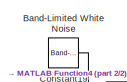
[diagram: root canvas - part 1/2, top center region]
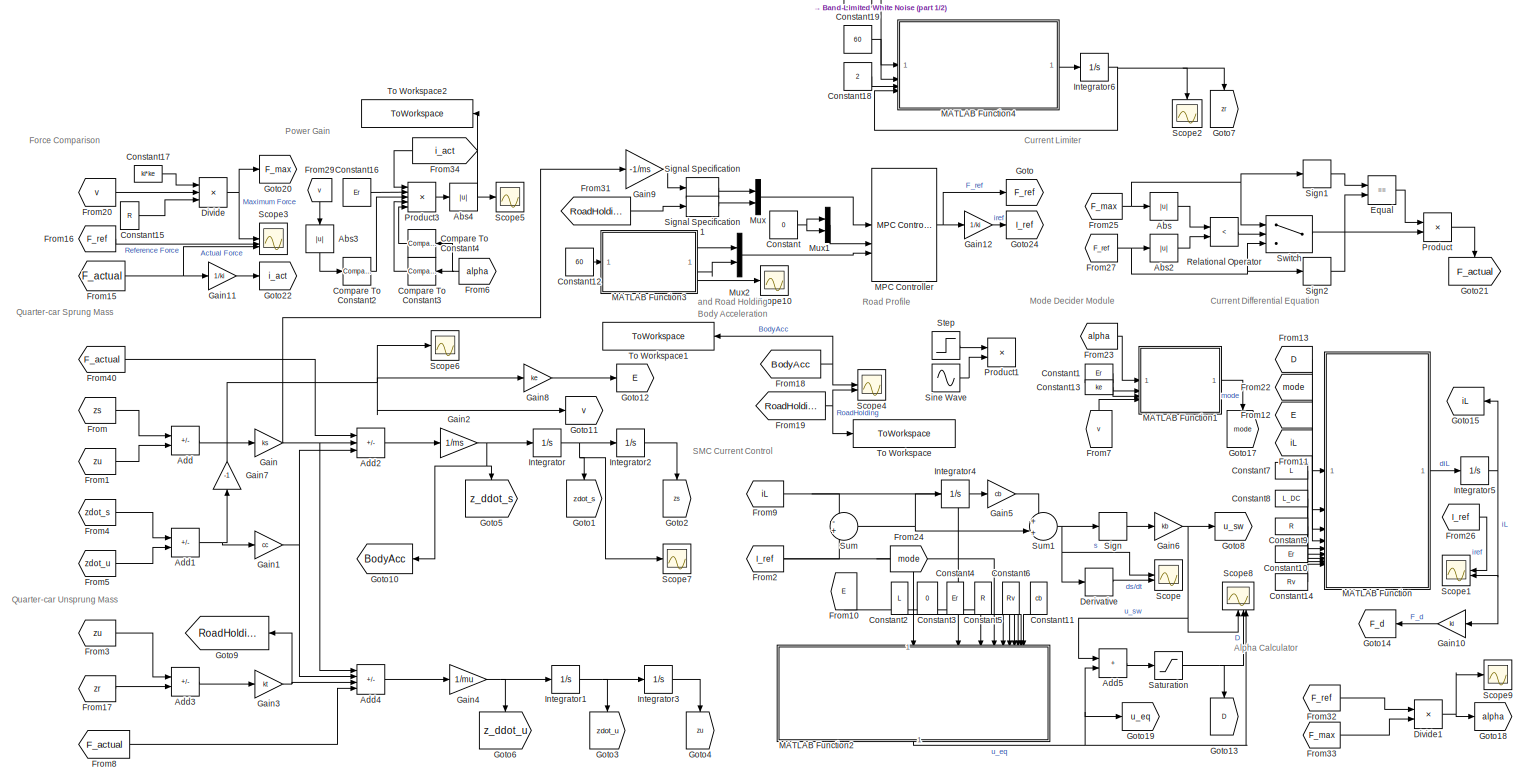
[diagram: root canvas - part 2/2, most of the canvas]
MODEL slx_d35f3d474cee
KIND model
CONFIG AbsTol = auto
CONFIG EnableMultiTasking = off
CONFIG FixedStep = 1e-6
CONFIG MaxStep = 1e-3
CONFIG MinStep = 1e-8
CONFIG RelTol = 1e-4
CONFIG SampleTimeConstraint = Unconstrained
CONFIG SolverName = FixedStepAuto
CONFIG StartTime = 0.0
CONFIG StopTime = 1.5
BLOCK [Abs] Abs
  SaturateOnIntegerOverflow = off
BLOCK [Abs] Abs2
  SaturateOnIntegerOverflow = off
BLOCK [Abs] Abs3
  NameLocation = left
  SaturateOnIntegerOverflow = off
BLOCK [Abs] Abs4
  SaturateOnIntegerOverflow = off
BLOCK [Sum] Add
  IconShape = rectangular
  Inputs = +-
BLOCK [Sum] Add1
  IconShape = rectangular
  Inputs = +-
BLOCK [Sum] Add2
  IconShape = rectangular
  Inputs = +--
BLOCK [Sum] Add3
  IconShape = rectangular
  Inputs = +-
BLOCK [Sum] Add4
  IconShape = rectangular
  Inputs = ++--
BLOCK [Sum] Add5
  IconShape = rectangular
BLOCK [Reference] Band-Limited White Noise  REF=simulink/Sources/Band-Limited
White Noise
  SourceBlock = simulink/Sources/Band-Limited\nWhite Noise
  SourceType = Band-Limited White Noise.
BLOCK [Reference] Compare To Constant2  REF=simulink/Logic and Bit
Operations/Compare
To Constant
  SourceBlock = simulink/Logic and Bit\nOperations/Compare\nTo Constant
  SourceType = Compare To Constant
BLOCK [Reference] Compare To Constant3  REF=simulink/Logic and Bit
Operations/Compare
To Constant
  NameLocation = top
  SourceBlock = simulink/Logic and Bit\nOperations/Compare\nTo Constant
  SourceType = Compare To Constant
BLOCK [Reference] Compare To Constant4  REF=simulink/Logic and Bit
Operations/Compare
To Constant
  NameLocation = top
  SourceBlock = simulink/Logic and Bit\nOperations/Compare\nTo Constant
  SourceType = Compare To Constant
BLOCK [Constant] Constant
  Value = 0
BLOCK [Constant] Constant1
  Value = Er
BLOCK [Constant] Constant10
  Value = Er
BLOCK [Constant] Constant11
  NameLocation = left
  Value = cb
BLOCK [Constant] Constant12
  Value = 60
BLOCK [Constant] Constant13
  Value = ke
BLOCK [Constant] Constant14
  Value = Rv
BLOCK [Constant] Constant15
  Value = R
BLOCK [Constant] Constant16
  Value = Er
BLOCK [Constant] Constant17
  Value = ki*ke
BLOCK [Constant] Constant18
  Value = 2
BLOCK [Constant] Constant19
  Value = 60
BLOCK [Constant] Constant2
  NameLocation = left
  Value = L
BLOCK [Constant] Constant3
  NameLocation = left
  Value = 0
BLOCK [Constant] Constant4
  NameLocation = left
  Value = Er
BLOCK [Constant] Constant5
  NameLocation = left
  Value = R
BLOCK [Constant] Constant6
  NameLocation = left
  Value = Rv
BLOCK [Constant] Constant7
  Value = L
BLOCK [Constant] Constant8
  Value = L_DC
BLOCK [Constant] Constant9
  Value = R
BLOCK [Derivative] Derivative
BLOCK [Product] Divide
  Inputs = **/
BLOCK [Product] Divide1
  Inputs = */
BLOCK [RelationalOperator] Equal
  InputSameDT = off
  Operator = ==
  OutDataTypeStr = boolean
  RndMeth = Simplest
BLOCK [From] From
  GotoTag = zs
BLOCK [From] From1
  GotoTag = zu
BLOCK [From] From10
  GotoTag = E
  NameLocation = left
BLOCK [From] From11
  GotoTag = iL
BLOCK [From] From12
  GotoTag = E
BLOCK [From] From13
  GotoTag = D
BLOCK [From] From15
  GotoTag = F_actual
BLOCK [From] From16
  GotoTag = F_ref
BLOCK [From] From17
  GotoTag = zr
BLOCK [From] From18
  GotoTag = BodyAcc
BLOCK [From] From19
  GotoTag = RoadHolding
BLOCK [From] From2
  GotoTag = I_ref
BLOCK [From] From20
  GotoTag = v
BLOCK [From] From22
  GotoTag = mode
BLOCK [From] From23
  GotoTag = alpha
BLOCK [From] From24
  GotoTag = mode
  NameLocation = top
BLOCK [From] From25
  GotoTag = F_max
BLOCK [From] From26
  GotoTag = I_ref
BLOCK [From] From27
  GotoTag = F_ref
  NameLocation = top
BLOCK [From] From29
  GotoTag = v
  NameLocation = left
BLOCK [From] From3
  GotoTag = zu
BLOCK [From] From31
  GotoTag = RoadHolding
BLOCK [From] From32
  GotoTag = F_ref
BLOCK [From] From33
  GotoTag = F_max
BLOCK [From] From34
  GotoTag = i_act
  NameLocation = top
BLOCK [From] From4
  GotoTag = zdot_s
BLOCK [From] From40
  GotoTag = F_actual
BLOCK [From] From5
  GotoTag = zdot_u
BLOCK [From] From6
  GotoTag = alpha
  NameLocation = top
BLOCK [From] From7
  GotoTag = v
  NameLocation = right
BLOCK [From] From8
  GotoTag = F_actual
BLOCK [From] From9
  GotoTag = iL
BLOCK [Gain] Gain
  Gain = ks
BLOCK [Gain] Gain1
  Gain = cc
BLOCK [Gain] Gain10
  Gain = ki
  NameLocation = top
BLOCK [Gain] Gain11
  Gain = 1/ki
BLOCK [Gain] Gain12
  Gain = 1/ki
BLOCK [Gain] Gain2
  Gain = 1/ms
BLOCK [Gain] Gain3
  Gain = kt
BLOCK [Gain] Gain4
  Gain = 1/mu
BLOCK [Gain] Gain5
  Gain = cb
BLOCK [Gain] Gain6
  Gain = kb
BLOCK [Gain] Gain7
  Gain = -1
  NameLocation = right
BLOCK [Gain] Gain8
  Gain = ke
BLOCK [Gain] Gain9
  Gain = -1/ms
BLOCK [Goto] Goto
  GotoTag = F_ref
BLOCK [Goto] Goto1
  GotoTag = zdot_s
  NameLocation = left
BLOCK [Goto] Goto10
  GotoTag = BodyAcc
  NameLocation = top
BLOCK [Goto] Goto11
  GotoTag = v
BLOCK [Goto] Goto12
  GotoTag = E
BLOCK [Goto] Goto13
  GotoTag = D
  NameLocation = left
BLOCK [Goto] Goto14
  GotoTag = F_d
  NameLocation = top
BLOCK [Goto] Goto15
  GotoTag = iL
  NameLocation = top
BLOCK [Goto] Goto17
  GotoTag = mode
  NameLocation = left
BLOCK [Goto] Goto18
  GotoTag = alpha
BLOCK [Goto] Goto19
  GotoTag = u_eq
BLOCK [Goto] Goto2
  GotoTag = zs
  NameLocation = left
BLOCK [Goto] Goto20
  GotoTag = F_max
BLOCK [Goto] Goto21
  GotoTag = F_actual
  NameLocation = left
BLOCK [Goto] Goto22
  GotoTag = i_act
BLOCK [Goto] Goto24
  GotoTag = I_ref
BLOCK [Goto] Goto3
  GotoTag = zdot_u
  NameLocation = left
BLOCK [Goto] Goto4
  GotoTag = zu
  NameLocation = left
BLOCK [Goto] Goto5
  GotoTag = z_ddot_s
  NameLocation = left
BLOCK [Goto] Goto6
  GotoTag = z_ddot_u
  NameLocation = left
BLOCK [Goto] Goto7
  GotoTag = zr
  NameLocation = left
BLOCK [Goto] Goto8
  GotoTag = u_sw
BLOCK [Goto] Goto9
  GotoTag = RoadHolding
  NameLocation = top
BLOCK [Integrator] Integrator
BLOCK [Integrator] Integrator1
BLOCK [Integrator] Integrator2
BLOCK [Integrator] Integrator3
BLOCK [Integrator] Integrator4
BLOCK [Integrator] Integrator5
BLOCK [Integrator] Integrator6
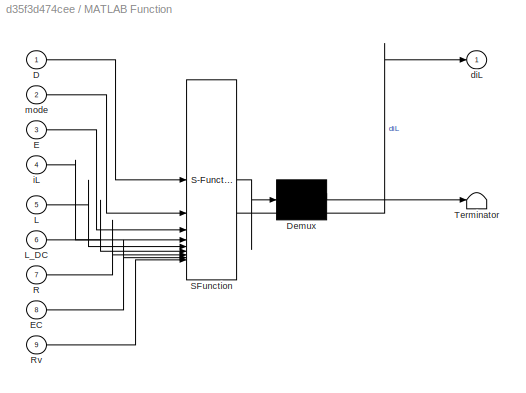
BLOCK [SubSystem] MATLAB Function
  ErrorFcn = Stateflow.Translate.translate
  PermitHierarchicalResolution = ExplicitOnly
  SFBlockType = MATLAB Function
  TreatAsAtomicUnit = on
BLOCK [Demux] MATLAB Function/ Demux 
  Outputs = 1
BLOCK [S-Function] MATLAB Function/ SFunction 
  EnableBusSupport = off
  FunctionName = sf_sfun
  PortCounts = [9 2]
  SFcnIsStateOwnerBlock = off
  SFunctionDeploymentMode = off
  Tag = Stateflow S-Function 2
BLOCK [Terminator] MATLAB Function/ Terminator 
BLOCK [Inport] MATLAB Function/D
BLOCK [Inport] MATLAB Function/E
  Port = 3
BLOCK [Inport] MATLAB Function/EC
  Port = 8
BLOCK [Inport] MATLAB Function/L
  Port = 5
BLOCK [Inport] MATLAB Function/L_DC
  Port = 6
BLOCK [Inport] MATLAB Function/R
  Port = 7
BLOCK [Inport] MATLAB Function/Rv
  Port = 9
BLOCK [Outport] MATLAB Function/diL
BLOCK [Inport] MATLAB Function/iL
  Port = 4
BLOCK [Inport] MATLAB Function/mode
  Port = 2
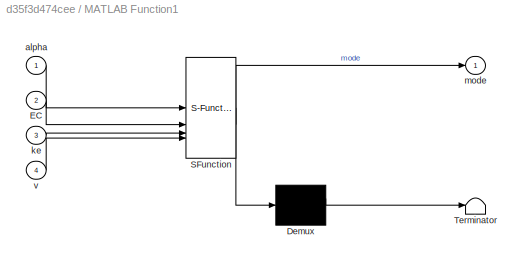
BLOCK [SubSystem] MATLAB Function1
  ErrorFcn = Stateflow.Translate.translate
  PermitHierarchicalResolution = ExplicitOnly
  SFBlockType = MATLAB Function
  TreatAsAtomicUnit = on
BLOCK [Demux] MATLAB Function1/ Demux 
  Outputs = 1
BLOCK [S-Function] MATLAB Function1/ SFunction 
  EnableBusSupport = off
  FunctionName = sf_sfun
  PortCounts = [4 2]
  SFcnIsStateOwnerBlock = off
  SFunctionDeploymentMode = off
  Tag = Stateflow S-Function 1
BLOCK [Terminator] MATLAB Function1/ Terminator 
BLOCK [Inport] MATLAB Function1/EC
  Port = 2
BLOCK [Inport] MATLAB Function1/alpha
BLOCK [Inport] MATLAB Function1/ke
  Port = 3
BLOCK [Outport] MATLAB Function1/mode
BLOCK [Inport] MATLAB Function1/v
  Port = 4
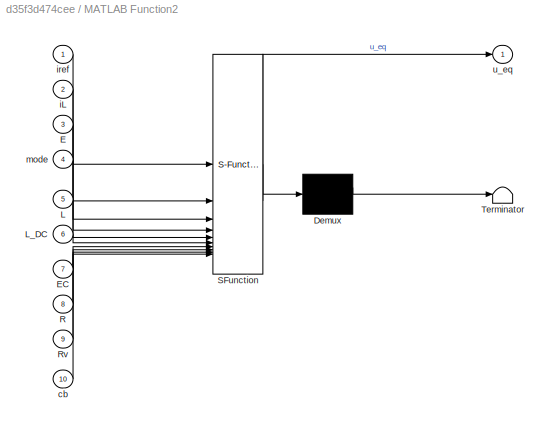
BLOCK [SubSystem] MATLAB Function2
  ErrorFcn = Stateflow.Translate.translate
  NameLocation = left
  PermitHierarchicalResolution = ExplicitOnly
  SFBlockType = MATLAB Function
  TreatAsAtomicUnit = on
BLOCK [Demux] MATLAB Function2/ Demux 
  Outputs = 1
BLOCK [S-Function] MATLAB Function2/ SFunction 
  EnableBusSupport = off
  FunctionName = sf_sfun
  PortCounts = [10 2]
  SFcnIsStateOwnerBlock = off
  SFunctionDeploymentMode = off
  Tag = Stateflow S-Function 3
BLOCK [Terminator] MATLAB Function2/ Terminator 
BLOCK [Inport] MATLAB Function2/E
  Port = 3
BLOCK [Inport] MATLAB Function2/EC
  Port = 7
BLOCK [Inport] MATLAB Function2/L
  Port = 5
BLOCK [Inport] MATLAB Function2/L_DC
  Port = 6
BLOCK [Inport] MATLAB Function2/R
  Port = 8
BLOCK [Inport] MATLAB Function2/Rv
  Port = 9
BLOCK [Inport] MATLAB Function2/cb
  Port = 10
BLOCK [Inport] MATLAB Function2/iL
  Port = 2
BLOCK [Inport] MATLAB Function2/iref
BLOCK [Inport] MATLAB Function2/mode
  Port = 4
BLOCK [Outport] MATLAB Function2/u_eq
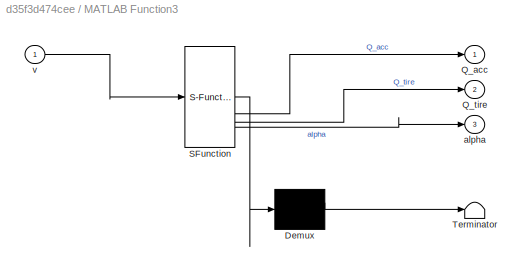
BLOCK [SubSystem] MATLAB Function3
  ErrorFcn = Stateflow.Translate.translate
  PermitHierarchicalResolution = ExplicitOnly
  SFBlockType = MATLAB Function
  TreatAsAtomicUnit = on
BLOCK [Demux] MATLAB Function3/ Demux 
  Outputs = 1
BLOCK [S-Function] MATLAB Function3/ SFunction 
  EnableBusSupport = off
  FunctionName = sf_sfun
  PortCounts = [1 4]
  SFcnIsStateOwnerBlock = off
  SFunctionDeploymentMode = off
  Tag = Stateflow S-Function 4
BLOCK [Terminator] MATLAB Function3/ Terminator 
BLOCK [Outport] MATLAB Function3/Q_acc
BLOCK [Outport] MATLAB Function3/Q_tire
  Port = 2
BLOCK [Outport] MATLAB Function3/alpha
  Port = 3
BLOCK [Inport] MATLAB Function3/v
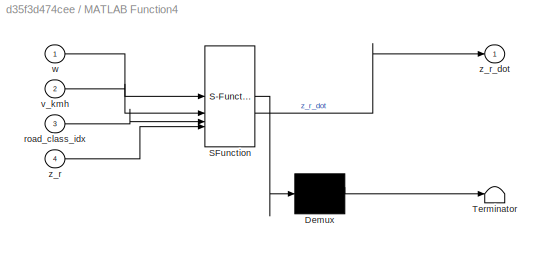
BLOCK [SubSystem] MATLAB Function4
  ErrorFcn = Stateflow.Translate.translate
  PermitHierarchicalResolution = ExplicitOnly
  SFBlockType = MATLAB Function
  TreatAsAtomicUnit = on
BLOCK [Demux] MATLAB Function4/ Demux 
  Outputs = 1
BLOCK [S-Function] MATLAB Function4/ SFunction 
  EnableBusSupport = off
  FunctionName = sf_sfun
  PortCounts = [4 2]
  SFcnIsStateOwnerBlock = off
  SFunctionDeploymentMode = off
  Tag = Stateflow S-Function 5
BLOCK [Terminator] MATLAB Function4/ Terminator 
BLOCK [Inport] MATLAB Function4/road_class_idx
  Port = 3
BLOCK [Inport] MATLAB Function4/v_kmh
  Port = 2
BLOCK [Inport] MATLAB Function4/w
BLOCK [Inport] MATLAB Function4/z_r
  Port = 4
BLOCK [Outport] MATLAB Function4/z_r_dot
BLOCK [Reference] MPC Controller  REF=mpclib/MPC Controller  (lib defined in mdl_ae329e0e0455)
  SCDEnableBlockLinearizationSpecification = on
  SourceBlock = mpclib/MPC Controller
  SourceType = MPC
BLOCK [Mux] Mux
  DisplayOption = bar
  Inputs = 2
BLOCK [Mux] Mux1
  DisplayOption = bar
  Inputs = 2
BLOCK [Mux] Mux2
  DisplayOption = bar
  Inputs = 2
BLOCK [Product] Product
BLOCK [Product] Product1
BLOCK [Product] Product3
  Inputs = 5
BLOCK [RelationalOperator] Relational Operator
  InputSameDT = off
  Operator = <
  OutDataTypeStr = boolean
  RndMeth = Simplest
BLOCK [Saturate] Saturation
  LowerLimit = 0
  UpperLimit = 1
BLOCK [Scope] Scope
  ActiveDisplayYMaximum = 27.088399971002072
  ActiveDisplayYMinimum = -29.356292824896194
  DataLoggingVariableName = ScopeData2
  Floating = off
  GraphicalSettings = {"Style":{"BackgroundColor":[0.12941176470588237,0.12941176470588237,0.12941176470588237],"AxesColor":[0.07058823529411765,0.07058823529411765,0.07058823529411765],"LabelsColor":[0.8509803921568627,0.8509803921568627,0.8509803921568627],"PreserveColors":false,"Visible":[true,true],"LineStyle":["-","-"],"LineWidth":[1.5,1.5],"BarWidth":[0.9,0.9],"LineColor":["auto","auto"],"LineFaceAlpha":[1,1],"Li...<+2404ch>
  LayoutDimensionsString = [1, 2]
  MultipleDisplayCache = [{"MaxYLimMag":29.356292824896194,"MaxYLimReal":27.088399971002072,"MinYLimMag":0,"MinYLimReal":-29.356292824896194,"PlotAsMagnitudePhase":false,"ShowGrid":true,"ShowLegend":true,"Title":"%<SignalLabel>","YLabel":""},{"MaxYLimMag":3.1278223433579169E+7,"MaxYLimReal":2.9638150807690009E+7,"MinYLimMag":0,"MinYLimReal":-3.1278223433579169E+7,"PlotAsMagnitudePhase":false,"ShowGrid":true,"ShowLegend":t...<+42ch>
  NumInputPorts = 2
  ScopeFrameLocation = window
  ShowLegend = on
  Visible = on
  WasSavedAsWebScope = on
  WindowPosition = [241.000000,208.000000,958.000000,484.000000,]
BLOCK [Scope] Scope1
  ActiveDisplayYMaximum = 1
  ActiveDisplayYMinimum = -1
  Floating = off
  GraphicalSettings = {"Style":{"BackgroundColor":[0.12941176470588237,0.12941176470588237,0.12941176470588237],"AxesColor":[0.07058823529411765,0.07058823529411765,0.07058823529411765],"LabelsColor":[0.8509803921568627,0.8509803921568627,0.8509803921568627],"PreserveColors":false,"Visible":[true,true],"LineStyle":["-","-"],"LineWidth":[1.5,1.5],"BarWidth":[0.9,0.9],"LineColor":["auto","auto"],"LineFaceAlpha":[1,1],"Li...<+2091ch>
  MultipleDisplayCache = [{"MaxYLimMag":1,"MaxYLimReal":1,"MinYLimMag":0,"MinYLimReal":-1,"PlotAsMagnitudePhase":false,"ShowGrid":true,"ShowLegend":true,"Title":"%<SignalLabel>","YLabel":""}]
  NameLocation = top
  NumInputPorts = 2
  ScopeFrameLocation = window
  ShowLegend = on
  WasSavedAsWebScope = on
  WindowPosition = [9.000000,9.000000,1424.000000,831.000000,]
BLOCK [Scope] Scope10
  ActiveDisplayYMaximum = 0.057425873177566637
  ActiveDisplayYMinimum = 0.037425873177566633
  DataLoggingVariableName = ScopeData10
  Floating = off
  GraphicalSettings = {"Style":{"BackgroundColor":[0.12941176470588237,0.12941176470588237,0.12941176470588237],"AxesColor":[0.07058823529411765,0.07058823529411765,0.07058823529411765],"LabelsColor":[0.8509803921568627,0.8509803921568627,0.8509803921568627],"PreserveColors":false,"Visible":[true],"LineStyle":["-"],"LineWidth":[1.5],"BarWidth":[0.9],"LineColor":["auto"],"LineFaceAlpha":[1],"LineEdgeAlpha":[1],"Marker":...<+2068ch>
  MultipleDisplayCache = [{"MaxYLimMag":0.057425873177566637,"MaxYLimReal":0.057425873177566637,"MinYLimMag":0.037425873177566633,"MinYLimReal":0.037425873177566633,"PlotAsMagnitudePhase":false,"ShowGrid":true,"ShowLegend":false,"Title":"%<SignalLabel>","YLabel":""}]
  NumInputPorts = 1
  ScopeFrameLocation = window
  Visible = on
  WasSavedAsWebScope = on
  WindowPosition = [440.000000,240.000000,560.000000,420.000000,]
BLOCK [Scope] Scope2
  ActiveDisplayYMaximum = 0.076093014405660034
  ActiveDisplayYMinimum = -0.038627991186600694
  DataLoggingVariableName = ScopeData1
  Floating = off
  GraphicalSettings = {"Style":{"BackgroundColor":[0.12941176470588237,0.12941176470588237,0.12941176470588237],"AxesColor":[0.07058823529411765,0.07058823529411765,0.07058823529411765],"LabelsColor":[0.8509803921568627,0.8509803921568627,0.8509803921568627],"PreserveColors":false,"Visible":[true],"LineStyle":["-"],"LineWidth":[1.5],"BarWidth":[0.9],"LineColor":["auto"],"LineFaceAlpha":[1],"LineEdgeAlpha":[1],"Marker":...<+2014ch>
  MultipleDisplayCache = [{"MaxYLimMag":0.076093014405660034,"MaxYLimReal":0.076093014405660034,"MinYLimMag":0,"MinYLimReal":-0.038627991186600694,"PlotAsMagnitudePhase":false,"ShowGrid":true,"ShowLegend":false,"Title":"%<SignalLabel>","YLabel":""}]
  NameLocation = left
  NumInputPorts = 1
  ScopeFrameLocation = window
  Visible = on
  WasSavedAsWebScope = on
  WindowPosition = [440.000000,240.000000,560.000000,420.000000,]
BLOCK [Scope] Scope3
  ActiveDisplayYMaximum = 2225.4972154687066
  ActiveDisplayYMinimum = -2220.0939214078944
  DataLoggingVariableName = ScopeData4
  Floating = off
  GraphicalSettings = {"Style":{"BackgroundColor":[0.12941176470588237,0.12941176470588237,0.12941176470588237],"AxesColor":[0.07058823529411765,0.07058823529411765,0.07058823529411765],"LabelsColor":[0.8509803921568627,0.8509803921568627,0.8509803921568627],"PreserveColors":false,"Visible":[true,true,true],"LineStyle":["-","-","-"],"LineWidth":[1.5,1.5,1.5],"BarWidth":[0.9,0.9,0.9],"LineColor":["auto","auto","auto"],"...<+2264ch>
  MultipleDisplayCache = [{"MaxYLimMag":2225.4972154687066,"MaxYLimReal":2225.4972154687066,"MinYLimMag":0,"MinYLimReal":-2220.0939214078944,"PlotAsMagnitudePhase":false,"ShowGrid":true,"ShowLegend":true,"Title":"%<SignalLabel>","YLabel":""}]
  NumInputPorts = 3
  ScopeFrameLocation = window
  ShowLegend = on
  Visible = on
  WasSavedAsWebScope = on
  WindowPosition = [9.000000,9.000000,1424.000000,831.000000,]
BLOCK [Scope] Scope4
  ActiveDisplayString = 2
  ActiveDisplayYMaximum = 1323.571862646857
  ActiveDisplayYMinimum = -1440.5117323109057
  DataLoggingVariableName = ScopeData5
  Floating = off
  GraphicalSettings = {"Style":{"BackgroundColor":[1,1,1],"AxesColor":[1,1,1],"LabelsColor":[0,0,0],"PreserveColors":false,"Visible":[true,true],"LineStyle":["-","-"],"LineWidth":[3,3],"BarWidth":[0.9,0.9],"LineColor":[[0.06666666666666667,0.44313725490196076,0.7450980392156863],[1,0,0]],"LineFaceAlpha":[1,1],"LineEdgeAlpha":[1,1],"Marker":["none","none"],"FontSize":8.5,"LineTrueColor":[[0.06666666666666667,0.443137254...<+2307ch>
  LayoutDimensionsString = [2, 1]
  MultipleDisplayCache = [{"MaxYLimMag":35.348913273160036,"MaxYLimReal":35.348913273160036,"MinYLimMag":0,"MinYLimReal":-34.01587980290951,"PlotAsMagnitudePhase":false,"ShowGrid":true,"ShowLegend":true,"Title":"%<SignalLabel>","YLabel":""},{"MaxYLimMag":1440.5117323109057,"MaxYLimReal":1323.571862646857,"MinYLimMag":0,"MinYLimReal":-1440.5117323109057,"PlotAsMagnitudePhase":false,"ShowGrid":true,"ShowLegend":true,"Title"...<+31ch>
  NumInputPorts = 2
  ScopeFrameLocation = window
  ShowLegend = on
  Visible = on
  WasSavedAsWebScope = on
  WindowPosition = [1.000000,1.000000,1440.000000,847.000000,]
BLOCK [Scope] Scope5
  ActiveDisplayYMaximum = 143.22637971720667
  ActiveDisplayYMinimum = -15.914042190800739
  DataLoggingVariableName = ScopeData3
  Floating = off
  GraphicalSettings = {"Style":{"BackgroundColor":[0.12941176470588237,0.12941176470588237,0.12941176470588237],"AxesColor":[0.07058823529411765,0.07058823529411765,0.07058823529411765],"LabelsColor":[0.8509803921568627,0.8509803921568627,0.8509803921568627],"PreserveColors":false,"Visible":[true],"LineStyle":["-"],"LineWidth":[1.5],"BarWidth":[0.9],"LineColor":["auto"],"LineFaceAlpha":[1],"LineEdgeAlpha":[1],"Marker":...<+1993ch>
  MultipleDisplayCache = [{"MaxYLimMag":143.22637971720667,"MaxYLimReal":143.22637971720667,"MinYLimMag":0,"MinYLimReal":-15.914042190800739,"PlotAsMagnitudePhase":false,"ShowGrid":true,"ShowLegend":false,"Title":"%<SignalLabel>","YLabel":""}]
  NumInputPorts = 1
  ScopeFrameLocation = window
  Visible = on
  WasSavedAsWebScope = on
  WindowPosition = [9.000000,9.000000,1424.000000,831.000000,]
BLOCK [Scope] Scope6
  ActiveDisplayYMaximum = 1
  ActiveDisplayYMinimum = -1
  DataLoggingVariableName = ScopeData6
  Floating = off
  GraphicalSettings = {"Style":{"BackgroundColor":[0.12941176470588237,0.12941176470588237,0.12941176470588237],"AxesColor":[0.07058823529411765,0.07058823529411765,0.07058823529411765],"LabelsColor":[0.8509803921568627,0.8509803921568627,0.8509803921568627],"PreserveColors":false,"Visible":[true],"LineStyle":["-"],"LineWidth":[1.5],"BarWidth":[0.9],"LineColor":["auto"],"LineFaceAlpha":[1],"LineEdgeAlpha":[1],"Marker":...<+1990ch>
  MultipleDisplayCache = [{"MaxYLimMag":1,"MaxYLimReal":1,"MinYLimMag":0,"MinYLimReal":-1,"PlotAsMagnitudePhase":false,"ShowGrid":true,"ShowLegend":false,"Title":"%<SignalLabel>","YLabel":""}]
  NumInputPorts = 1
  ScopeFrameLocation = window
  WasSavedAsWebScope = on
  WindowPosition = [483.000000,50.000000,958.000000,484.000000,]
BLOCK [Scope] Scope7
  ActiveDisplayYMaximum = 0.54221285575835743
  ActiveDisplayYMinimum = -0.36527469356697528
  DataLoggingVariableName = ScopeData7
  Floating = off
  GraphicalSettings = {"Style":{"BackgroundColor":[0.12941176470588237,0.12941176470588237,0.12941176470588237],"AxesColor":[0.07058823529411765,0.07058823529411765,0.07058823529411765],"LabelsColor":[0.8509803921568627,0.8509803921568627,0.8509803921568627],"PreserveColors":false,"Visible":[true],"LineStyle":["-"],"LineWidth":[1.5],"BarWidth":[0.9],"LineColor":["auto"],"LineFaceAlpha":[1],"LineEdgeAlpha":[1],"Marker":...<+2004ch>
  MultipleDisplayCache = [{"MaxYLimMag":0.54221285575835743,"MaxYLimReal":0.54221285575835743,"MinYLimMag":0,"MinYLimReal":-0.36527469356697528,"PlotAsMagnitudePhase":false,"ShowGrid":true,"ShowLegend":false,"Title":"%<SignalLabel>","YLabel":""}]
  NumInputPorts = 1
  ScopeFrameLocation = window
  Visible = on
  WasSavedAsWebScope = on
  WindowPosition = [551.000000,152.000000,560.000000,420.000000,]
BLOCK [Scope] Scope8
  ActiveDisplayYMaximum = 2.8491770678518753
  ActiveDisplayYMinimum = -1.7651094697775311
  DataLoggingVariableName = ScopeData8
  Floating = off
  GraphicalSettings = {"Style":{"BackgroundColor":[0.12941176470588237,0.12941176470588237,0.12941176470588237],"AxesColor":[0.07058823529411765,0.07058823529411765,0.07058823529411765],"LabelsColor":[0.8509803921568627,0.8509803921568627,0.8509803921568627],"PreserveColors":false,"Visible":[true,true,true],"LineStyle":["-","-","-"],"LineWidth":[1.5,1.5,1.5],"BarWidth":[0.9,0.9,0.9],"LineColor":["auto","auto","auto"],"...<+2202ch>
  MultipleDisplayCache = [{"MaxYLimMag":2.8491770678518753,"MaxYLimReal":2.8491770678518753,"MinYLimMag":0,"MinYLimReal":-1.7651094697775311,"PlotAsMagnitudePhase":false,"ShowGrid":true,"ShowLegend":true,"Title":"%<SignalLabel>","YLabel":""}]
  NameLocation = right
  NumInputPorts = 3
  ScopeFrameLocation = window
  ShowLegend = on
  Visible = on
  WasSavedAsWebScope = on
  WindowPosition = [2.000000,50.000000,958.000000,484.000000,]
BLOCK [Scope] Scope9
  ActiveDisplayYMaximum = 1.4819821077396598E+7
  ActiveDisplayYMinimum = -9.7479760166625269E+6
  DataLoggingVariableName = ScopeData9
  Floating = off
  GraphicalSettings = {"Style":{"BackgroundColor":[0.12941176470588237,0.12941176470588237,0.12941176470588237],"AxesColor":[0.07058823529411765,0.07058823529411765,0.07058823529411765],"LabelsColor":[0.8509803921568627,0.8509803921568627,0.8509803921568627],"PreserveColors":false,"Visible":[true],"LineStyle":["-"],"LineWidth":[1.5],"BarWidth":[0.9],"LineColor":["auto"],"LineFaceAlpha":[1],"LineEdgeAlpha":[1],"Marker":...<+1997ch>
  MultipleDisplayCache = [{"MaxYLimMag":1.4819821077396598E+7,"MaxYLimReal":1.4819821077396598E+7,"MinYLimMag":0,"MinYLimReal":-9.7479760166625269E+6,"PlotAsMagnitudePhase":false,"ShowGrid":true,"ShowLegend":false,"Title":"%<SignalLabel>","YLabel":""}]
  NumInputPorts = 1
  ScopeFrameLocation = window
  Visible = on
  WasSavedAsWebScope = on
  WindowPosition = [440.000000,240.000000,560.000000,420.000000,]
BLOCK [Signum] Sign
BLOCK [Signum] Sign1
BLOCK [Signum] Sign2
BLOCK [SignalSpecification] Signal Specification
  Dimensions = 1
BLOCK [SignalSpecification] Signal Specification1
  Dimensions = 1
BLOCK [Sin] Sine Wave
  Amplitude = 0.03
  Frequency = 2*pi*10.9
  SampleTime = 0
BLOCK [Step] Step
  After = 0
  Before = 1
  SampleTime = 0
BLOCK [Sum] Sum
  Inputs = -+
BLOCK [Sum] Sum1
  Inputs = +|+||
BLOCK [Switch] Switch
  Criteria = u2 > Threshold
  InputSameDT = off
  SaturateOnIntegerOverflow = off
  Threshold = 0.5
BLOCK [ToWorkspace] To Workspace
  FixptAsFi = on
  MaxDataPoints = inf
  SampleTime = -1
  SaveFormat = Structure With Time
  VariableName = RoadHolding
BLOCK [ToWorkspace] To Workspace1
  FixptAsFi = on
  MaxDataPoints = inf
  NameLocation = top
  SampleTime = -1
  SaveFormat = Structure With Time
  VariableName = BodyAcceleration
BLOCK [ToWorkspace] To Workspace2
  FixptAsFi = on
  MaxDataPoints = inf
  NameLocation = top
  SampleTime = -1
  SaveFormat = Structure With Time
  VariableName = Power
ANNOTATION (root): Alpha Calculator
ANNOTATION (root): Body Acceleration and Road Holding
ANNOTATION (root): Current Differential Equation
ANNOTATION (root): Current Limiter
ANNOTATION (root): Force Comparison
ANNOTATION (root): Mode Decider Module
ANNOTATION (root): Power Gain
ANNOTATION (root): Quarter-car Sprung Mass
ANNOTATION (root): Quarter-car Unsprung Mass
ANNOTATION (root): Road Profile
ANNOTATION (root): SMC Current Control
LINE Abs2:1 -> Relational Operator:2
LINE Abs3:1 -> Compare To Constant2:1
NET Abs4:1 -> Scope5:1, To Workspace2:1
LINE Abs:1 -> Relational Operator:1
NET Add1:1 -> Gain1:1, Gain7:1
LINE Add2:1 -> Gain2:1
LINE Add3:1 -> Gain3:1
LINE Add4:1 -> Gain4:1
LINE Add5:1 -> Saturation:1
LINE Add:1 -> Gain:1
LINE Band-Limited White Noise:1 -> MATLAB Function4:1
LINE Compare To Constant2:1 -> Product3:3
LINE Compare To Constant3:1 -> Product3:4
LINE Compare To Constant4:1 -> Product3:5
LINE Constant10:1 -> MATLAB Function:8
LINE Constant11:1 -> MATLAB Function2:10
LINE Constant12:1 -> MATLAB Function3:1
LINE Constant13:1 -> MATLAB Function1:3
LINE Constant14:1 -> MATLAB Function:9
LINE Constant15:1 -> Divide:3
LINE Constant16:1 -> Product3:2
LINE Constant17:1 -> Divide:1
LINE Constant18:1 -> MATLAB Function4:3
LINE Constant19:1 -> MATLAB Function4:2
LINE Constant1:1 -> MATLAB Function1:2
LINE Constant2:1 -> MATLAB Function2:5
LINE Constant3:1 -> MATLAB Function2:6
LINE Constant4:1 -> MATLAB Function2:7
LINE Constant5:1 -> MATLAB Function2:8
LINE Constant6:1 -> MATLAB Function2:9
LINE Constant7:1 -> MATLAB Function:5
LINE Constant8:1 -> MATLAB Function:6
LINE Constant9:1 -> MATLAB Function:7
NET Constant:1 -> Mux1:1, Mux1:2
LINE Derivative:1 -> Scope:2
NET Divide1:1 -> Goto18:1, Scope9:1
NET Divide:1 -> Goto20:1, Scope3:1
LINE Equal:1 -> Product:1
LINE From10:1 -> MATLAB Function2:3
LINE From11:1 -> MATLAB Function:4
LINE From12:1 -> MATLAB Function:3
LINE From13:1 -> MATLAB Function:1
NET From15:1 -> Gain11:1, Scope3:3
LINE From16:1 -> Scope3:2
LINE From17:1 -> Add3:2
NET From18:1 -> Scope4:1, To Workspace1:1
NET From19:1 -> Scope4:2, To Workspace:1
LINE From1:1 -> Add:2
LINE From20:1 -> Divide:2
LINE From22:1 -> MATLAB Function:2
LINE From23:1 -> MATLAB Function1:1
LINE From24:1 -> MATLAB Function2:4
NET From25:1 -> Abs:1, Sign1:1, Switch:1
LINE From26:1 -> Scope1:1
NET From27:1 -> Abs2:1, Sign2:1, Switch:3
LINE From29:1 -> Abs3:1
NET From2:1 -> MATLAB Function2:1, Sum:2
LINE From31:1 -> Signal Specification1:1
LINE From32:1 -> Divide1:1
LINE From33:1 -> Divide1:2
LINE From34:1 -> Product3:1
LINE From3:1 -> Add3:1
LINE From40:1 -> Add2:1
LINE From4:1 -> Add1:1
LINE From5:1 -> Add1:2
NET From6:1 -> Compare To Constant3:1, Compare To Constant4:1
LINE From7:1 -> MATLAB Function1:4
LINE From8:1 -> Add4:4
NET From9:1 -> MATLAB Function2:2, Sum:1
LINE From:1 -> Add:1
LINE Gain10:1 -> Goto14:1
LINE Gain11:1 -> Goto22:1
LINE Gain12:1 -> Goto24:1
NET Gain1:1 -> Add2:3, Add4:2
NET Gain2:1 -> Goto10:1, Goto5:1, Integrator:1
NET Gain3:1 -> Add4:3, Goto9:1
NET Gain4:1 -> Goto6:1, Integrator1:1
LINE Gain5:1 -> Sum1:1
NET Gain6:1 -> Add5:1, Goto8:1, Scope8:1
NET Gain7:1 -> Gain8:1, Goto11:1, Scope6:1
LINE Gain8:1 -> Goto12:1
LINE Gain9:1 -> Signal Specification:1
NET Gain:1 -> Add2:2, Add4:1, Gain9:1
NET Integrator1:1 -> Goto3:1, Integrator3:1
LINE Integrator2:1 -> Goto2:1
LINE Integrator3:1 -> Goto4:1
LINE Integrator4:1 -> Gain5:1
NET Integrator5:1 -> Gain10:1, Goto15:1, Scope1:2
NET Integrator6:1 -> Goto7:1, MATLAB Function4:4, Scope2:1
NET Integrator:1 -> Goto1:1, Integrator2:1, Scope7:1
LINE MATLAB Function1:1 -> Goto17:1
NET MATLAB Function2:1 -> Add5:2, Goto19:1, Scope8:3
LINE MATLAB Function3:1 -> Mux2:1
LINE MATLAB Function3:2 -> Mux2:2
LINE MATLAB Function3:3 -> Scope10:1
LINE MATLAB Function4:1 -> Integrator6:1
LINE MATLAB Function:1 -> Integrator5:1
NET MPC Controller:1 -> Gain12:1, Goto:1
LINE Mux1:1 -> MPC Controller:2
LINE Mux2:1 -> MPC Controller:3
LINE Mux:1 -> MPC Controller:1
LINE Product3:1 -> Abs4:1
LINE Product:1 -> Goto21:1
LINE Relational Operator:1 -> Switch:2
NET Saturation:1 -> Goto13:1, Scope8:2
LINE Sign1:1 -> Equal:1
LINE Sign2:1 -> Equal:2
LINE Sign:1 -> Gain6:1
LINE Signal Specification1:1 -> Mux:2
LINE Signal Specification:1 -> Mux:1
LINE Sine Wave:1 -> Product1:2
LINE Step:1 -> Product1:1
NET Sum1:1 -> Derivative:1, Scope:1, Sign:1
NET Sum:1 -> Integrator4:1, Sum1:2
LINE Switch:1 -> Product:2
note: NET lines group one-source signal fan-out (src -> all destinations, sorted); 1:1 wires keep LINE
CHART MATLAB Function1 states=1 transitions=1
  STATE_LABEL 'eML_blk_kernel()'
  STATE_LABEL 'SCRIPT:\nfunction mode = mode(alpha, EC, ke, v)\n\n    % guard against alpha >= 1\n    if alpha >= 1\n        % semi-active not achievable\n        % both VT1 and VT2 on, passive damper\n        mode = 1;   % or handle separately\n        return\n    end\n\n    v_alpha = EC / (ke * (1 - alpha));\n\n    if abs(v) < v_alpha\n        mode = 1;   % boost\n    else\n        mode = 0;   % buck\n    end\nend'
CHART MATLAB Function states=1 transitions=1
  STATE_LABEL 'eML_blk_kernel()'
  STATE_LABEL 'SCRIPT:\nfunction diL = diL(D, mode, E, iL, L, L_DC, R, EC, Rv)\n    LDC = L + L_DC;\n    if mode == 1  % boost\n        diL = -(R/LDC)*iL - ((1-D)/LDC)*EC + (1/LDC)*E;\n    else          % buck\n        diL  = -((D*R*L + (1-D)*(R+Rv)*LDC)/(L * LDC))*iL - (D/LDC)*EC + (D*L + (1-D)*LDC)/(L * LDC) * E;\n    end\nend'
CHART MATLAB Function2 states=1 transitions=1
  STATE_LABEL 'eML_blk_kernel()'
  STATE_LABEL 'SCRIPT:\nfunction u_eq = controller(iref, iL, E, mode, L, L_DC, EC, R, Rv, cb)\n    LDC = L + L_DC;\n    e   = iref - iL;        % current error\n\n    if mode == 1  % boost\n        numerator   = EC - E + R*iref + cb*e*LDC;\n        denominator = EC;\n        u_eq = numerator / denominator;\n\n    else          % buck\n        numerator   = E - (R + Rv)*iref - cb*e*L;\n        denominator = (L*R*iref)/LDC - ...<+89ch>'
CHART MATLAB Function3 states=1 transitions=1
  STATE_LABEL 'eML_blk_kernel()'
  STATE_LABEL 'SCRIPT:\nfunction [Q_acc, Q_tire, alpha] = weight_scheduler(v)\n    % Adaptive MPC Weight Scheduler for Semi-Active Suspension\n    % Inputs:\n    %   v - Vehicle longitudinal speed (km/h)\n    % Outputs:\n    %   alpha  - Comfort weight multiplier (0 to 1)\n    %   Q_acc  - Penalty weight for body acceleration (comfort)\n    %   Q_tire - Penalty weight for tire dynamic load (road holding)\n\n    % 1. Tunin...<+759ch>'
CHART MATLAB Function4 states=1 transitions=1
  STATE_LABEL 'eML_blk_kernel()'
  STATE_LABEL 'SCRIPT:\nfunction z_r_dot = iso_road_filter(w, v_kmh, road_class_idx, z_r)\n    % Inputs:\n    %   w              - White noise input signal\n    %   v_kmh          - Vehicle speed in km/h from workspace\n    %   road_class_idx - 1 for Class B, 2 for Class D\n    %   z_r            - Current road displacement (feedback loop)\n    \n    % Constants\n    n_0 = 0.1;   % Reference spatial frequency (cycles/m)\n...<+525ch>'
CHART  states=0 transitions=0
CHART  states=0 transitions=0
CHART  states=0 transitions=0
CHART  states=0 transitions=0
CHART  states=0 transitions=0
